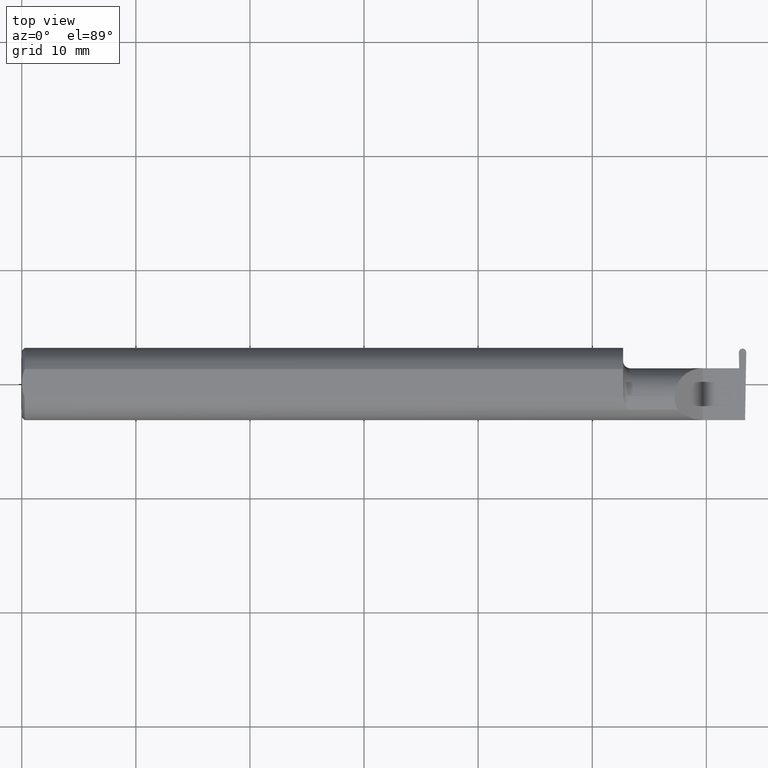
[diagram: clean part render]
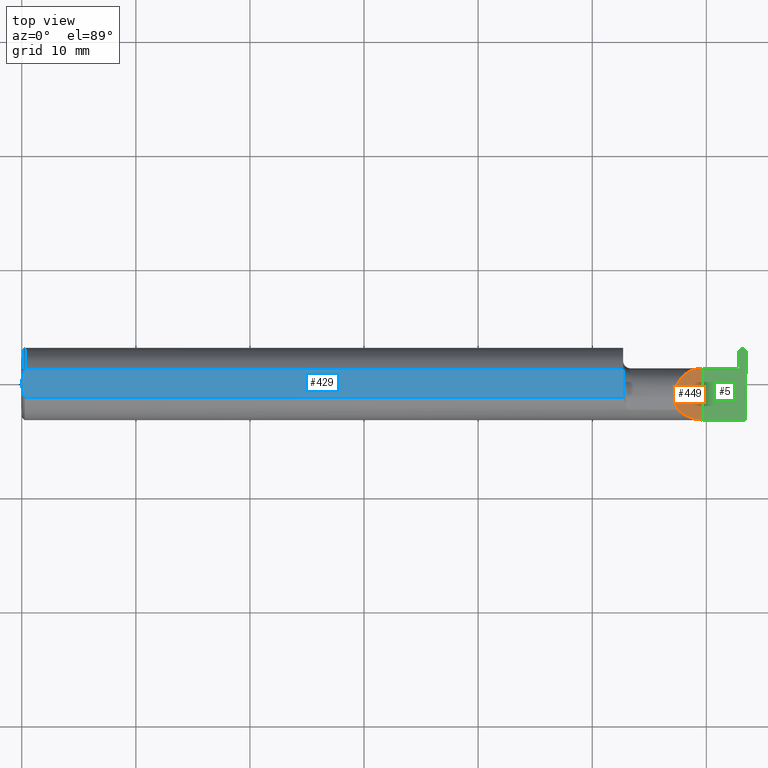
[diagram: same view with three faces highlighted in distinct colors, each labeled with its STEP entity id]
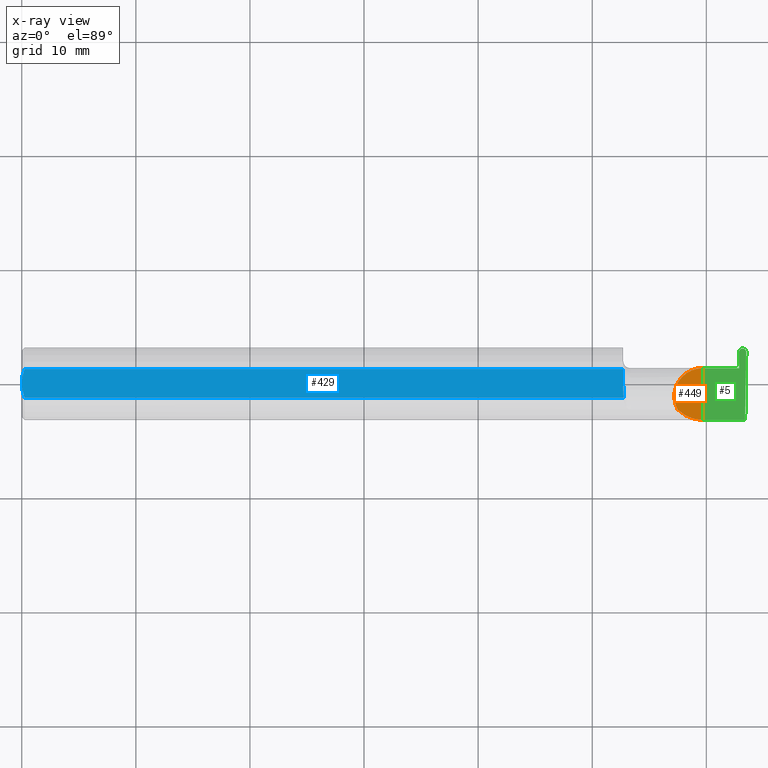
[diagram: x-ray of the same camera — body ghosted, the three highlighted faces saturated]
A machine part, top view with three faces highlighted in distinct colors.
The next image is the same camera in x-ray (body ghosted, the three faces saturated) — at least one of them is partly hidden behind the body in this view.
Their STEP definitions:

[orange] entity #449 — the highlighted planar face has unit normal (-0.7071, 0, -0.7071).
#10 = ORIENTED_EDGE ( 'NONE', *, *, #672, .F. ) ;
#19 = CARTESIAN_POINT ( 'NONE',  ( 2.251999999999998892, -0.06028551311893200898, 0.09800000000000005929 ) ) ;
#20 = EDGE_CURVE ( 'NONE', #172, #434, #565, .T. ) ;
#48 = LINE ( 'NONE', #282, #238 ) ;
#145 = EDGE_CURVE ( 'NONE', #221, #434, #48, .T. ) ;
#172 = VERTEX_POINT ( 'NONE', #383 ) ;
#178 =( BOUNDED_CURVE ( )  B_SPLINE_CURVE ( 3, ( #685, #195, #491, #254 ),
 .UNSPECIFIED., .F., .F. ) 
 B_SPLINE_CURVE_WITH_KNOTS ( ( 4, 4 ),
 ( 4.712388980384689674, 5.474523801125206646 ),
 .UNSPECIFIED. ) 
 CURVE ( )  GEOMETRIC_REPRESENTATION_ITEM ( )  RATIONAL_B_SPLINE_CURVE ( ( 1.000000000000000000, 0.9521787881681383903, 0.9521787881681383903, 1.000000000000000000 ) ) 
 REPRESENTATION_ITEM ( '' )  );
#195 = CARTESIAN_POINT ( 'NONE',  ( 2.317450832343515899, -0.1250000000000000000, 0.03254916765648416949 ) ) ;
#207 = CARTESIAN_POINT ( 'NONE',  ( 2.255977500337024377, -0.07607783494366275601, 0.09402249966297451800 ) ) ;
#209 = VERTEX_POINT ( 'NONE', #307 ) ;
#213 = CARTESIAN_POINT ( 'NONE',  ( 2.292592929112562405, 0.05399999999999999245, 0.05740707088743673275 ) ) ;
#221 = VERTEX_POINT ( 'NONE', #690 ) ;
#234 = CARTESIAN_POINT ( 'NONE',  ( 2.350000000000000089, 0.05399999999999999245, 5.204748896376245769E-17 ) ) ;
#238 = VECTOR ( 'NONE', #526, 39.37007874015748143 ) ;
#254 = CARTESIAN_POINT ( 'NONE',  ( 2.263691591372603895, -0.09042045454545441507, 0.08630840862739512509 ) ) ;
#274 = EDGE_CURVE ( 'NONE', #221, #209, #178, .T. ) ;
#278 = CARTESIAN_POINT ( 'NONE',  ( 2.251999999999998892, -0.04400000000000004602, 0.09800000000000005929 ) ) ;
#281 = PLANE ( 'NONE',  #356 ) ;
#282 = CARTESIAN_POINT ( 'NONE',  ( 2.350000000000000089, -0.2500000000000000555, 1.836970198721028825E-17 ) ) ;
#307 = CARTESIAN_POINT ( 'NONE',  ( 2.263691591372603895, -0.09042045454545441507, 0.08630840862739512509 ) ) ;
#338 = DIRECTION ( 'NONE',  ( -0.7071067811865511255, 0.000000000000000000, 0.7071067811865439090 ) ) ;
#356 = AXIS2_PLACEMENT_3D ( 'NONE', #457, #461, #338 ) ;
#383 = CARTESIAN_POINT ( 'NONE',  ( 2.251999999999998892, -0.04400000000000004602, 0.09800000000000005929 ) ) ;
#434 = VERTEX_POINT ( 'NONE', #519 ) ;
#449 = ADVANCED_FACE ( 'NONE', ( #772 ), #281, .F. ) ;
#457 = CARTESIAN_POINT ( 'NONE',  ( 2.350000000000000089, -0.2500000000000000555, 1.836970198721028825E-17 ) ) ;
#461 = DIRECTION ( 'NONE',  ( -0.7071067811865439090, 0.000000000000000000, -0.7071067811865511255 ) ) ;
#473 = ORIENTED_EDGE ( 'NONE', *, *, #274, .F. ) ;
#491 = CARTESIAN_POINT ( 'NONE',  ( 2.287236475649208067, -0.1128945894460738203, 0.06276352435079109171 ) ) ;
#499 = EDGE_LOOP ( 'NONE', ( #10, #473, #787, #783 ) ) ;
#503 = CARTESIAN_POINT ( 'NONE',  ( 2.263691591372603895, -0.09042045454545441507, 0.08630840862739512509 ) ) ;
#519 = CARTESIAN_POINT ( 'NONE',  ( 2.350000000000000089, 0.05399999999999999245, 5.204748896376245769E-17 ) ) ;
#522 = CARTESIAN_POINT ( 'NONE',  ( 2.251999999999999336, 0.01340707088743666418, 0.09800000000000003153 ) ) ;
#526 = DIRECTION ( 'NONE',  ( -0.000000000000000000, 1.000000000000000000, -0.000000000000000000 ) ) ;
#565 =( BOUNDED_CURVE ( )  B_SPLINE_CURVE ( 3, ( #278, #522, #213, #234 ),
 .UNSPECIFIED., .F., .T. ) 
 B_SPLINE_CURVE_WITH_KNOTS ( ( 4, 4 ),
 ( 0.000000000000000000, 1.570796326794896336 ),
 .UNSPECIFIED. ) 
 CURVE ( )  GEOMETRIC_REPRESENTATION_ITEM ( )  RATIONAL_B_SPLINE_CURVE ( ( 1.000000000000000000, 0.8047378541243650485, 0.8047378541243650485, 1.000000000000000000 ) ) 
 REPRESENTATION_ITEM ( '' )  );
#672 = EDGE_CURVE ( 'NONE', #209, #172, #737, .T. ) ;
#685 = CARTESIAN_POINT ( 'NONE',  ( 2.350000000000000089, -0.1250000000000000278, 1.836970198721028825E-17 ) ) ;
#690 = CARTESIAN_POINT ( 'NONE',  ( 2.350000000000000089, -0.1250000000000000278, 1.836970198721028825E-17 ) ) ;
#737 =( BOUNDED_CURVE ( )  B_SPLINE_CURVE ( 3, ( #503, #207, #19, #764 ),
 .UNSPECIFIED., .F., .F. ) 
 B_SPLINE_CURVE_WITH_KNOTS ( ( 4, 4 ),
 ( 5.789722842198295361, 6.283185307179586232 ),
 .UNSPECIFIED. ) 
 CURVE ( )  GEOMETRIC_REPRESENTATION_ITEM ( )  RATIONAL_B_SPLINE_CURVE ( ( 1.000000000000000000, 0.9798106333074687591, 0.9798106333074687591, 1.000000000000000000 ) ) 
 REPRESENTATION_ITEM ( '' )  );
#764 = CARTESIAN_POINT ( 'NONE',  ( 2.251999999999998892, -0.04400000000000004602, 0.09800000000000005929 ) ) ;
#772 = FACE_OUTER_BOUND ( 'NONE', #499, .T. ) ;
#783 = ORIENTED_EDGE ( 'NONE', *, *, #20, .F. ) ;
#787 = ORIENTED_EDGE ( 'NONE', *, *, #145, .T. ) ;

[blue] entity #429 — the highlighted planar face has unit normal (0, 0, 1).
#12 = PLANE ( 'NONE',  #239 ) ;
#21 = FACE_OUTER_BOUND ( 'NONE', #805, .T. ) ;
#22 = CARTESIAN_POINT ( 'NONE',  ( 2.076314561435346207, -0.03672135622230198598, 0.1149999999999999356 ) ) ;
#40 = EDGE_CURVE ( 'NONE', #558, #119, #283, .T. ) ;
#44 = CARTESIAN_POINT ( 'NONE',  ( 2.076290282237983398, -0.04815824740011447752, 0.1149999999999999356 ) ) ;
#52 = CARTESIAN_POINT ( 'NONE',  ( 1.541666659510484467E-16, -0.008419750986449443114, 0.1149999999999999356 ) ) ;
#57 = CARTESIAN_POINT ( 'NONE',  ( 0.01000000000000042348, 0.04898979485566374442, 0.1149999999999999217 ) ) ;
#63 = B_SPLINE_CURVE_WITH_KNOTS ( 'NONE', 3,
 ( #671, #44, #298, #361, #486, #719 ),
 .UNSPECIFIED., .F., .F.,
 ( 4, 2, 4 ),
 ( 0.009319464280391123040, 0.009382478399794849655, 0.009445492519198574535 ),
 .UNSPECIFIED. ) ;
#64 = CARTESIAN_POINT ( 'NONE',  ( 2.076314561435346207, -0.04400000000000004602, 0.1149999999999999217 ) ) ;
#75 = CARTESIAN_POINT ( 'NONE',  ( 0.000000000000000000, 3.414809992080329023E-17, 0.1149999999999999217 ) ) ;
#111 = VECTOR ( 'NONE', #611, 39.37007874015748143 ) ;
#119 = VERTEX_POINT ( 'NONE', #643 ) ;
#122 = CARTESIAN_POINT ( 'NONE',  ( 0.01000000000000042348, -0.04898979485566374442, 0.1149999999999999217 ) ) ;
#131 = DIRECTION ( 'NONE',  ( 1.000000000000000000, 0.000000000000000000, 0.000000000000000000 ) ) ;
#191 = CARTESIAN_POINT ( 'NONE',  ( 0.000000000000000000, 3.414809992080329023E-17, 0.1149999999999999217 ) ) ;
#223 = EDGE_CURVE ( 'NONE', #541, #224, #513, .T. ) ;
#224 = VERTEX_POINT ( 'NONE', #191 ) ;
#227 = CARTESIAN_POINT ( 'NONE',  ( 0.01000000000000042348, -0.04898979485566374442, 0.1149999999999999217 ) ) ;
#239 = AXIS2_PLACEMENT_3D ( 'NONE', #709, #273, #765 ) ;
#249 = CARTESIAN_POINT ( 'NONE',  ( 2.075000000000000178, 0.04898979485566374442, 0.1149999999999999217 ) ) ;
#273 = DIRECTION ( 'NONE',  ( 0.000000000000000000, 0.000000000000000000, 1.000000000000000000 ) ) ;
#276 = LINE ( 'NONE', #774, #344 ) ;
#283 = B_SPLINE_CURVE_WITH_KNOTS ( 'NONE', 3,
 ( #520, #22, #468, #459, #676, #648 ),
 .UNSPECIFIED., .F., .F.,
 ( 4, 2, 4 ),
 ( 0.009445492519198574535, 0.009997058688341168425, 0.01054862485748376232 ),
 .UNSPECIFIED. ) ;
#297 = ORIENTED_EDGE ( 'NONE', *, *, #794, .T. ) ;
#298 = CARTESIAN_POINT ( 'NONE',  ( 2.076299368641396192, -0.04732662288298106201, 0.1149999999999999356 ) ) ;
#312 = VERTEX_POINT ( 'NONE', #249 ) ;
#318 = LINE ( 'NONE', #552, #111 ) ;
#331 = ORIENTED_EDGE ( 'NONE', *, *, #223, .F. ) ;
#344 = VECTOR ( 'NONE', #767, 39.37007874015748143 ) ;
#361 = CARTESIAN_POINT ( 'NONE',  ( 2.076311508822837215, -0.04566321385558330670, 0.1149999999999999217 ) ) ;
#384 = VERTEX_POINT ( 'NONE', #575 ) ;
#390 = ORIENTED_EDGE ( 'NONE', *, *, #556, .T. ) ;
#400 = CARTESIAN_POINT ( 'NONE',  ( 0.01000000000000042348, 0.04898979485566374442, 0.1149999999999999217 ) ) ;
#408 = VECTOR ( 'NONE', #131, 39.37007874015748143 ) ;
#429 = ADVANCED_FACE ( 'NONE', ( #21 ), #12, .T. ) ;
#433 = CARTESIAN_POINT ( 'NONE',  ( 0.000000000000000000, 3.414809992080329023E-17, 0.1149999999999999217 ) ) ;
#459 = CARTESIAN_POINT ( 'NONE',  ( 2.075386034718893935, -0.01491156948752236575, 0.1149999999999999217 ) ) ;
#468 = CARTESIAN_POINT ( 'NONE',  ( 2.076049928736321881, -0.02945016372790499812, 0.1149999999999999356 ) ) ;
#486 = CARTESIAN_POINT ( 'NONE',  ( 2.076314561435346651, -0.04483155449656758829, 0.1149999999999999356 ) ) ;
#489 = LINE ( 'NONE', #739, #408 ) ;
#512 = ORIENTED_EDGE ( 'NONE', *, *, #785, .F. ) ;
#513 = B_SPLINE_CURVE_WITH_KNOTS ( 'NONE', 3,
 ( #122, #624, #561, #564, #52, #433 ),
 .UNSPECIFIED., .F., .F.,
 ( 4, 2, 4 ),
 ( 0.001061950514642623312, 0.001696734447512964709, 0.002331518380383306322 ),
 .UNSPECIFIED. ) ;
#520 = CARTESIAN_POINT ( 'NONE',  ( 2.076314561435346207, -0.04400000000000004602, 0.1149999999999999217 ) ) ;
#521 = CARTESIAN_POINT ( 'NONE',  ( 0.003880275146595849479, 0.03337499979622342988, 0.1149999999999999217 ) ) ;
#523 = EDGE_CURVE ( 'NONE', #384, #558, #63, .T. ) ;
#541 = VERTEX_POINT ( 'NONE', #227 ) ;
#552 = CARTESIAN_POINT ( 'NONE',  ( 0.000000000000000000, 0.04898979485566374442, 0.1149999999999999217 ) ) ;
#556 = EDGE_CURVE ( 'NONE', #541, #384, #489, .T. ) ;
#558 = VERTEX_POINT ( 'NONE', #64 ) ;
#561 = CARTESIAN_POINT ( 'NONE',  ( 0.004414142251465132810, -0.03315347577847933824, 0.1149999999999999356 ) ) ;
#562 = ORIENTED_EDGE ( 'NONE', *, *, #40, .T. ) ;
#564 = CARTESIAN_POINT ( 'NONE',  ( 0.0009328476361608245343, -0.01672844127736827086, 0.1149999999999999217 ) ) ;
#568 = B_SPLINE_CURVE_WITH_KNOTS ( 'NONE', 3,
 ( #75, #585, #521, #400 ),
 .UNSPECIFIED., .F., .F.,
 ( 4, 4 ),
 ( 0.002331518380383306322, 0.003601362264757408584 ),
 .UNSPECIFIED. ) ;
#575 = CARTESIAN_POINT ( 'NONE',  ( 2.076278290187155484, -0.04898979485567048209, 0.1149999999999999217 ) ) ;
#585 = CARTESIAN_POINT ( 'NONE',  ( 1.642610067308552155E-16, 0.01684316307400865464, 0.1149999999999999217 ) ) ;
#611 = DIRECTION ( 'NONE',  ( -1.000000000000000000, -0.000000000000000000, -0.000000000000000000 ) ) ;
#624 = CARTESIAN_POINT ( 'NONE',  ( 0.006956794985978487743, -0.04122489957750442163, 0.1149999999999999356 ) ) ;
#625 = VERTEX_POINT ( 'NONE', #57 ) ;
#628 = EDGE_CURVE ( 'NONE', #312, #625, #318, .T. ) ;
#643 = CARTESIAN_POINT ( 'NONE',  ( 2.075000000000000178, -0.0003651515414569473403, 0.1149999999999999217 ) ) ;
#648 = CARTESIAN_POINT ( 'NONE',  ( 2.075000000000000178, -0.0003651515414569473403, 0.1149999999999999217 ) ) ;
#671 = CARTESIAN_POINT ( 'NONE',  ( 2.076278290187155484, -0.04898979485567048209, 0.1149999999999999217 ) ) ;
#676 = CARTESIAN_POINT ( 'NONE',  ( 2.075000000000000178, -0.007643795319155048847, 0.1149999999999999356 ) ) ;
#701 = ORIENTED_EDGE ( 'NONE', *, *, #523, .T. ) ;
#709 = CARTESIAN_POINT ( 'NONE',  ( 2.753179778023443269, 0.1250000000000000278, 0.1149999999999999217 ) ) ;
#719 = CARTESIAN_POINT ( 'NONE',  ( 2.076314561435346207, -0.04400000000000004602, 0.1149999999999999217 ) ) ;
#739 = CARTESIAN_POINT ( 'NONE',  ( 0.000000000000000000, -0.04898979485566374442, 0.1149999999999999217 ) ) ;
#753 = ORIENTED_EDGE ( 'NONE', *, *, #628, .T. ) ;
#765 = DIRECTION ( 'NONE',  ( 1.000000000000000000, 0.000000000000000000, -0.000000000000000000 ) ) ;
#767 = DIRECTION ( 'NONE',  ( 0.000000000000000000, 1.000000000000000000, 0.000000000000000000 ) ) ;
#774 = CARTESIAN_POINT ( 'NONE',  ( 2.075000000000000178, 0.1250000000000000278, 0.1149999999999999217 ) ) ;
#785 = EDGE_CURVE ( 'NONE', #224, #625, #568, .T. ) ;
#794 = EDGE_CURVE ( 'NONE', #119, #312, #276, .T. ) ;
#805 = EDGE_LOOP ( 'NONE', ( #390, #701, #562, #297, #753, #512, #331 ) ) ;

[green] entity #5 — the highlighted planar face has unit normal (-0, 0, -1).
#5 = ADVANCED_FACE ( 'NONE', ( #409 ), #25, .F. ) ;
#13 = VECTOR ( 'NONE', #740, 39.37007874015748854 ) ;
#25 = PLANE ( 'NONE',  #109 ) ;
#29 = VECTOR ( 'NONE', #385, 39.37007874015748143 ) ;
#45 = DIRECTION ( 'NONE',  ( 1.000000000000000000, 0.000000000000000000, 0.000000000000000000 ) ) ;
#48 = LINE ( 'NONE', #282, #238 ) ;
#55 = EDGE_CURVE ( 'NONE', #434, #644, #275, .T. ) ;
#59 = ORIENTED_EDGE ( 'NONE', *, *, #768, .F. ) ;
#60 = CARTESIAN_POINT ( 'NONE',  ( 2.469251112866224673, 0.05399999999999999245, 0.000000000000000000 ) ) ;
#80 = VECTOR ( 'NONE', #621, 39.37007874015748854 ) ;
#85 = CARTESIAN_POINT ( 'NONE',  ( 2.487399542938343089, 0.1219999999999999835, 0.000000000000000000 ) ) ;
#89 = LINE ( 'NONE', #580, #29 ) ;
#109 = AXIS2_PLACEMENT_3D ( 'NONE', #163, #666, #220 ) ;
#120 = CARTESIAN_POINT ( 'NONE',  ( 2.500126563608119135, 0.1163773611807860930, -1.865347047243944322E-17 ) ) ;
#128 = ORIENTED_EDGE ( 'NONE', *, *, #811, .F. ) ;
#142 = DIRECTION ( 'NONE',  ( -1.000000000000000000, -0.000000000000000000, -0.000000000000000000 ) ) ;
#145 = EDGE_CURVE ( 'NONE', #221, #434, #48, .T. ) ;
#149 = VECTOR ( 'NONE', #45, 39.37007874015748143 ) ;
#153 = CARTESIAN_POINT ( 'NONE',  ( 2.487076277061657237, 0.1219999999999999835, 0.000000000000000000 ) ) ;
#155 =( BOUNDED_CURVE ( )  B_SPLINE_CURVE ( 3, ( #375, #120, #423, #306 ),
 .UNSPECIFIED., .F., .F. ) 
 B_SPLINE_CURVE_WITH_KNOTS ( ( 4, 4 ),
 ( 1.677524580234104556, 3.253450286950886117 ),
 .UNSPECIFIED. ) 
 CURVE ( )  GEOMETRIC_REPRESENTATION_ITEM ( )  RATIONAL_B_SPLINE_CURVE ( ( 1.000000000000000000, 0.8035272986452568489, 0.8035272986452568489, 1.000000000000000000 ) ) 
 REPRESENTATION_ITEM ( '' )  );
#158 = EDGE_CURVE ( 'NONE', #426, #639, #782, .T. ) ;
#159 = CARTESIAN_POINT ( 'NONE',  ( 2.474487695872377380, 0.1084461686550174248, 0.000000000000000000 ) ) ;
#163 = CARTESIAN_POINT ( 'NONE',  ( 2.500000000000000000, -0.2500000000000000555, 0.000000000000000000 ) ) ;
#220 = DIRECTION ( 'NONE',  ( -1.000000000000000000, 0.000000000000000000, 1.224646799147352468E-16 ) ) ;
#221 = VERTEX_POINT ( 'NONE', #690 ) ;
#235 =( BOUNDED_CURVE ( )  B_SPLINE_CURVE ( 3, ( #153, #525, #270, #159 ),
 .UNSPECIFIED., .F., .F. ) 
 B_SPLINE_CURVE_WITH_KNOTS ( ( 4, 4 ),
 ( 6.171327673818499449, 7.747253380535275014 ),
 .UNSPECIFIED. ) 
 CURVE ( )  GEOMETRIC_REPRESENTATION_ITEM ( )  RATIONAL_B_SPLINE_CURVE ( ( 1.000000000000000000, 0.8035272986452582922, 0.8035272986452582922, 1.000000000000000000 ) ) 
 REPRESENTATION_ITEM ( '' )  );
#238 = VECTOR ( 'NONE', #526, 39.37007874015748143 ) ;
#240 = CARTESIAN_POINT ( 'NONE',  ( 2.499988124127622946, 0.1084461686550173415, 0.000000000000000000 ) ) ;
#263 = EDGE_CURVE ( 'NONE', #422, #706, #758, .T. ) ;
#270 = CARTESIAN_POINT ( 'NONE',  ( 2.474349256391881191, 0.1163773611807861486, 1.865347047243944014E-17 ) ) ;
#275 = LINE ( 'NONE', #359, #149 ) ;
#279 = ORIENTED_EDGE ( 'NONE', *, *, #391, .T. ) ;
#282 = CARTESIAN_POINT ( 'NONE',  ( 2.350000000000000089, -0.2500000000000000555, 1.836970198721028825E-17 ) ) ;
#291 = ORIENTED_EDGE ( 'NONE', *, *, #263, .F. ) ;
#306 = CARTESIAN_POINT ( 'NONE',  ( 2.487399542938343089, 0.1219999999999999835, 0.000000000000000000 ) ) ;
#311 = DIRECTION ( 'NONE',  ( 1.000000000000000000, -0.000000000000000000, -0.000000000000000000 ) ) ;
#348 = ORIENTED_EDGE ( 'NONE', *, *, #609, .T. ) ;
#354 = ORIENTED_EDGE ( 'NONE', *, *, #641, .F. ) ;
#359 = CARTESIAN_POINT ( 'NONE',  ( 2.075000000000000178, 0.05399999999999999245, 5.204748896376245769E-17 ) ) ;
#375 = CARTESIAN_POINT ( 'NONE',  ( 2.499988124127622946, 0.1084461686550173415, 0.000000000000000000 ) ) ;
#385 = DIRECTION ( 'NONE',  ( 1.000000000000000000, -0.000000000000000000, -0.000000000000000000 ) ) ;
#391 = EDGE_CURVE ( 'NONE', #422, #639, #235, .T. ) ;
#409 = FACE_OUTER_BOUND ( 'NONE', #668, .T. ) ;
#422 = VERTEX_POINT ( 'NONE', #578 ) ;
#423 = CARTESIAN_POINT ( 'NONE',  ( 2.494904346843567211, 0.1219999999999999557, -1.801393336792326575E-17 ) ) ;
#426 = VERTEX_POINT ( 'NONE', #703 ) ;
#432 = LINE ( 'NONE', #684, #80 ) ;
#434 = VERTEX_POINT ( 'NONE', #519 ) ;
#446 = VERTEX_POINT ( 'NONE', #776 ) ;
#451 = LINE ( 'NONE', #506, #548 ) ;
#480 = VERTEX_POINT ( 'NONE', #240 ) ;
#487 = CARTESIAN_POINT ( 'NONE',  ( 2.474477763728121893, 0.1090151808183310173, 0.000000000000000000 ) ) ;
#493 = CARTESIAN_POINT ( 'NONE',  ( 2.474487695872377380, 0.1084461686550174248, 0.000000000000000000 ) ) ;
#504 = CARTESIAN_POINT ( 'NONE',  ( -3.937007874019685528E-05, 0.1219999999999999835, 0.000000000000000000 ) ) ;
#506 = CARTESIAN_POINT ( 'NONE',  ( 3.749399456654637998E-32, -0.1249999999999999861, 3.061616997868380183E-16 ) ) ;
#519 = CARTESIAN_POINT ( 'NONE',  ( 2.350000000000000089, 0.05399999999999999245, 5.204748896376245769E-17 ) ) ;
#525 = CARTESIAN_POINT ( 'NONE',  ( 2.479571473156433115, 0.1219999999999999835, 1.801393336792325959E-17 ) ) ;
#526 = DIRECTION ( 'NONE',  ( -0.000000000000000000, 1.000000000000000000, -0.000000000000000000 ) ) ;
#548 = VECTOR ( 'NONE', #142, 39.37007874015748143 ) ;
#574 = VECTOR ( 'NONE', #311, 39.37007874015748143 ) ;
#578 = CARTESIAN_POINT ( 'NONE',  ( 2.487076277061657237, 0.1219999999999999835, 0.000000000000000000 ) ) ;
#580 = CARTESIAN_POINT ( 'NONE',  ( 2.475438057281342807, 0.05399999999999999245, 0.000000000000000000 ) ) ;
#584 = ORIENTED_EDGE ( 'NONE', *, *, #158, .F. ) ;
#603 = ORIENTED_EDGE ( 'NONE', *, *, #55, .F. ) ;
#607 = ORIENTED_EDGE ( 'NONE', *, *, #145, .F. ) ;
#609 = EDGE_CURVE ( 'NONE', #480, #706, #155, .T. ) ;
#621 = DIRECTION ( 'NONE',  ( -0.01745240643727864055, -0.9998476951563912696, 0.000000000000000000 ) ) ;
#639 = VERTEX_POINT ( 'NONE', #493 ) ;
#641 = EDGE_CURVE ( 'NONE', #480, #446, #432, .T. ) ;
#644 = VERTEX_POINT ( 'NONE', #60 ) ;
#666 = DIRECTION ( 'NONE',  ( -1.224646799147352468E-16, 0.000000000000000000, -1.000000000000000000 ) ) ;
#668 = EDGE_LOOP ( 'NONE', ( #291, #279, #584, #59, #603, #607, #128, #354, #348 ) ) ;
#684 = CARTESIAN_POINT ( 'NONE',  ( 2.499998056271878877, 0.1090151808183310173, 0.000000000000000000 ) ) ;
#690 = CARTESIAN_POINT ( 'NONE',  ( 2.350000000000000089, -0.1250000000000000278, 1.836970198721028825E-17 ) ) ;
#703 = CARTESIAN_POINT ( 'NONE',  ( 2.475438057281342807, 0.05399999999999999245, 0.000000000000000000 ) ) ;
#706 = VERTEX_POINT ( 'NONE', #85 ) ;
#740 = DIRECTION ( 'NONE',  ( -0.01745240643727214574, 0.9998476951563914916, -0.000000000000000000 ) ) ;
#758 = LINE ( 'NONE', #504, #574 ) ;
#768 = EDGE_CURVE ( 'NONE', #644, #426, #89, .T. ) ;
#776 = CARTESIAN_POINT ( 'NONE',  ( 2.495913306096507522, -0.1250000000000000000, 0.000000000000000000 ) ) ;
#782 = LINE ( 'NONE', #487, #13 ) ;
#811 = EDGE_CURVE ( 'NONE', #446, #221, #451, .T. ) ;